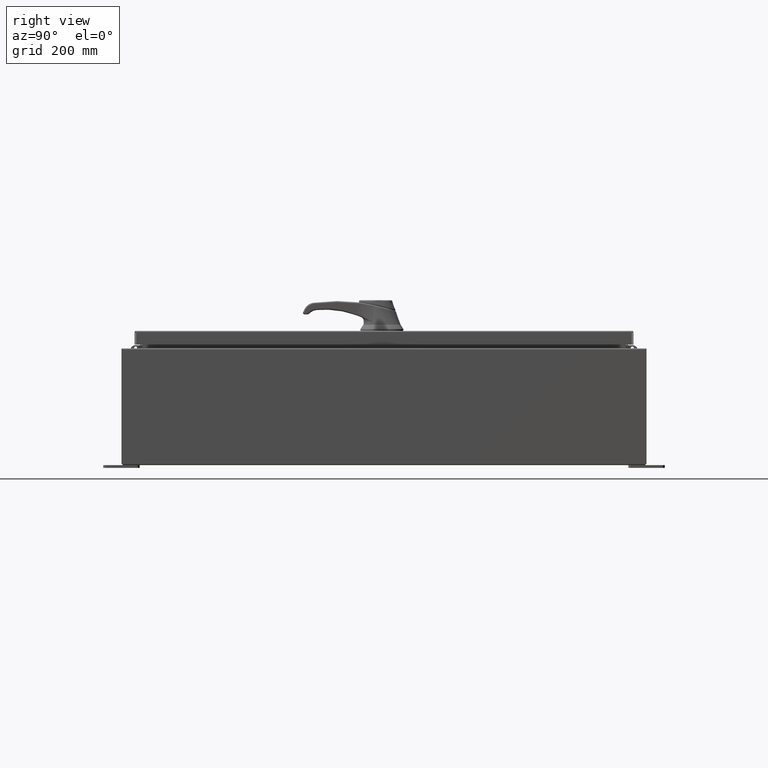
[diagram: clean part render]
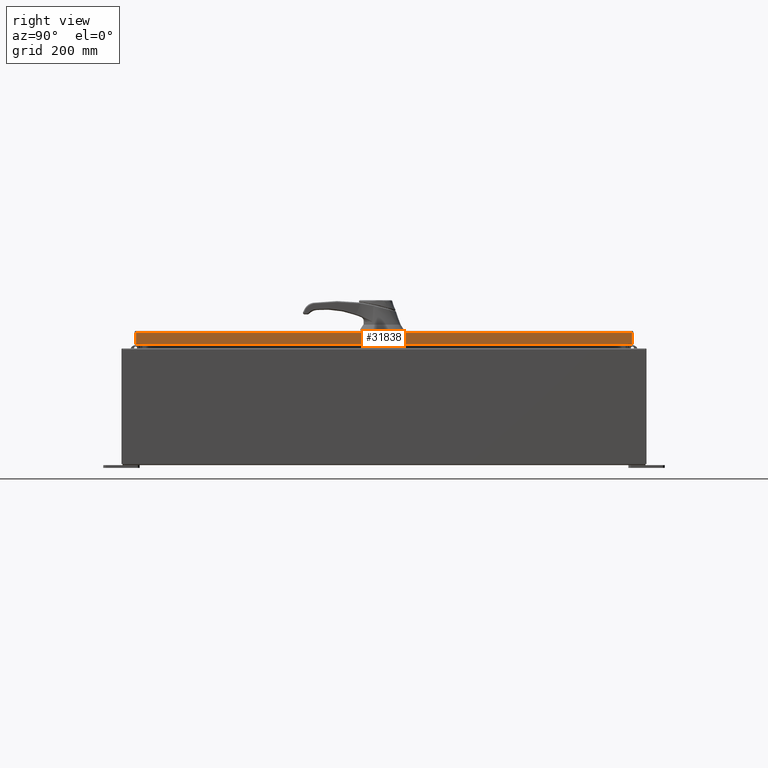
[diagram: same view with one face highlighted and labeled with its STEP entity id]
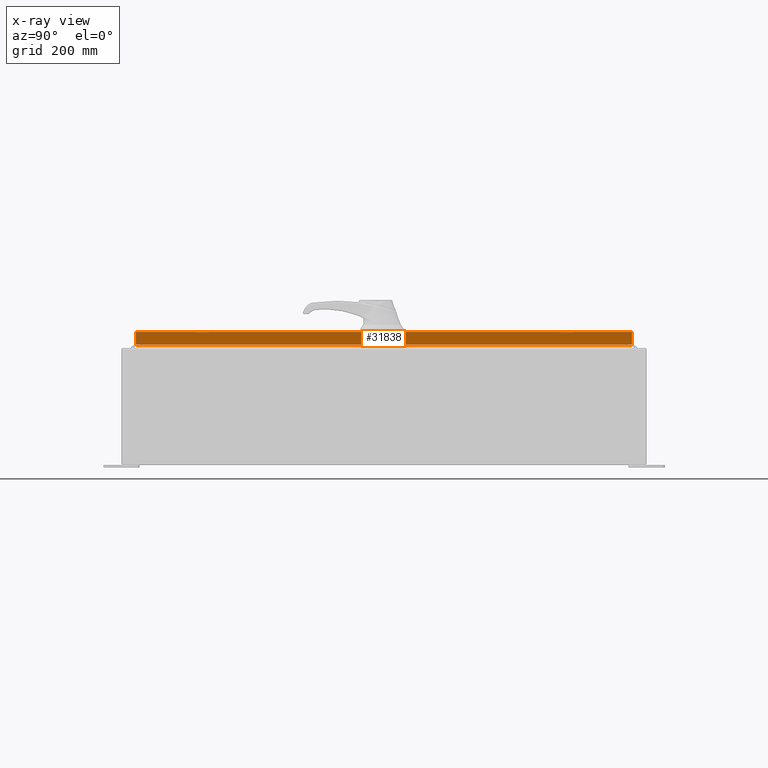
[diagram: x-ray of the same camera — body ghosted, the highlighted face saturated]
A machine part, right view. The second image highlights one B-rep face of the part: STEP entity #31838.
The next image is the same camera in x-ray: the body ghosted, the highlighted face saturated — about 0% of this face is hidden behind the body in this view.
In plain terms, the highlighted planar face has unit normal (1, 0, 0).
Its self-contained STEP definition (entity closure, byte-faithful):
#1550 = LINE ( 'NONE', #121807, #20790 ) ;
#8093 = DIRECTION ( 'NONE',  ( 0.0000000000000000000, -1.000000000000000000, 0.0000000000000000000 ) ) ;
#13715 = VERTEX_POINT ( 'NONE', #118867 ) ;
#15576 = ORIENTED_EDGE ( 'NONE', *, *, #66082, .F. ) ;
#20790 = VECTOR ( 'NONE', #8093, 39.37007874015748100 ) ;
#23538 = EDGE_CURVE ( 'NONE', #13715, #86565, #81542, .T. ) ;
#26450 = CARTESIAN_POINT ( 'NONE',  ( 14.07799999999999400, 17.00515786437627200, 1.546586040496592500E-013 ) ) ;
#31838 = ADVANCED_FACE ( 'NONE', ( #76234 ), #32729, .T. ) ;
#32584 = CARTESIAN_POINT ( 'NONE',  ( 14.07799999999999400, 0.0000000000000000000, -0.08770000000000008300 ) ) ;
#32729 = PLANE ( 'NONE',  #39305 ) ;
#39305 = AXIS2_PLACEMENT_3D ( 'NONE', #89590, #42261, #108703 ) ;
#42261 = DIRECTION ( 'NONE',  ( 1.000000000000000000, 0.0000000000000000000, 2.532419924601866100E-015 ) ) ;
#42345 = ORIENTED_EDGE ( 'NONE', *, *, #121332, .F. ) ;
#46649 = VECTOR ( 'NONE', #100544, 39.37007874015748100 ) ;
#53321 = VECTOR ( 'NONE', #56756, 39.37007874015748100 ) ;
#56756 = DIRECTION ( 'NONE',  ( -2.532419924601866100E-015, -6.982962677686265900E-015, 1.000000000000000000 ) ) ;
#65615 = EDGE_CURVE ( 'NONE', #86565, #104808, #120947, .T. ) ;
#66082 = EDGE_CURVE ( 'NONE', #88241, #104808, #91181, .T. ) ;
#71849 = CARTESIAN_POINT ( 'NONE',  ( 14.07799999999999400, -17.00515786437626900, -0.07469999999999980800 ) ) ;
#72895 = CARTESIAN_POINT ( 'NONE',  ( 14.07799999999999400, -17.00515786437626900, -0.08770000000000008300 ) ) ;
#76234 = FACE_OUTER_BOUND ( 'NONE', #83241, .T. ) ;
#79371 = CARTESIAN_POINT ( 'NONE',  ( 14.07799999999999600, -17.00515786437626200, -0.9376999999999997600 ) ) ;
#81542 = LINE ( 'NONE', #26450, #53321 ) ;
#83241 = EDGE_LOOP ( 'NONE', ( #15576, #42345, #118363, #92595 ) ) ;
#86565 = VERTEX_POINT ( 'NONE', #115007 ) ;
#88241 = VERTEX_POINT ( 'NONE', #79371 ) ;
#89590 = CARTESIAN_POINT ( 'NONE',  ( 14.07799999999999400, 0.0000000000000000000, 3.591222135455663800E-014 ) ) ;
#91181 = LINE ( 'NONE', #71849, #46649 ) ;
#92595 = ORIENTED_EDGE ( 'NONE', *, *, #65615, .T. ) ;
#92738 = VECTOR ( 'NONE', #98990, 39.37007874015748100 ) ;
#98990 = DIRECTION ( 'NONE',  ( 0.0000000000000000000, -1.000000000000000000, 0.0000000000000000000 ) ) ;
#100544 = DIRECTION ( 'NONE',  ( -2.532419924601866100E-015, -6.982962677686265900E-015, 1.000000000000000000 ) ) ;
#104808 = VERTEX_POINT ( 'NONE', #72895 ) ;
#108703 = DIRECTION ( 'NONE',  ( 2.532419924601866100E-015, 0.0000000000000000000, -1.000000000000000000 ) ) ;
#115007 = CARTESIAN_POINT ( 'NONE',  ( 14.07799999999999400, 17.00515786437626900, -0.08770000000000008300 ) ) ;
#118363 = ORIENTED_EDGE ( 'NONE', *, *, #23538, .T. ) ;
#118867 = CARTESIAN_POINT ( 'NONE',  ( 14.07799999999999600, 17.00515786437627600, -0.9376999999999997600 ) ) ;
#120947 = LINE ( 'NONE', #32584, #92738 ) ;
#121332 = EDGE_CURVE ( 'NONE', #13715, #88241, #1550, .T. ) ;
#121807 = CARTESIAN_POINT ( 'NONE',  ( 14.07799999999999600, -17.09400000000000100, -0.9376999999999997600 ) ) ;